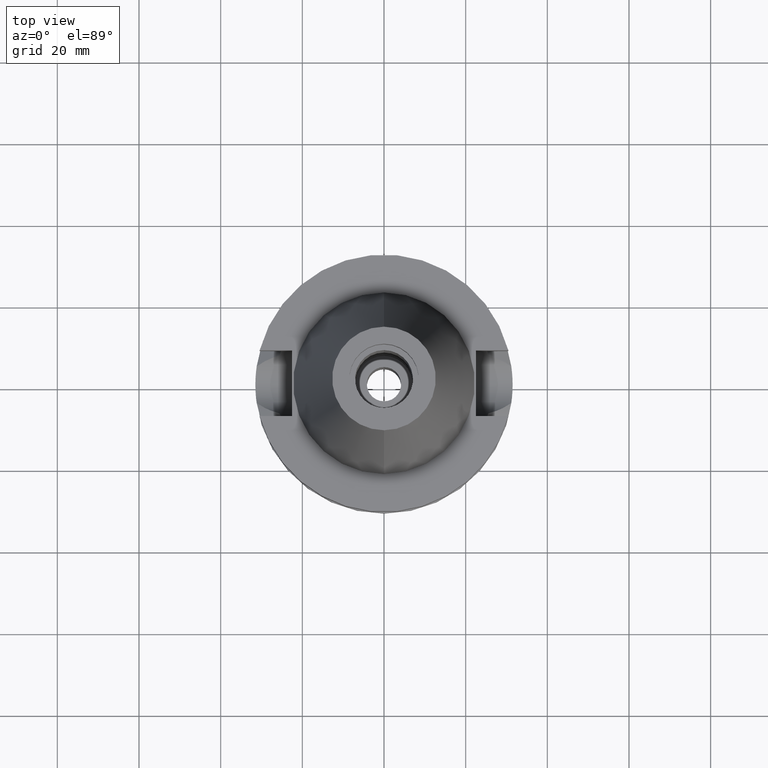
[diagram: clean part render]
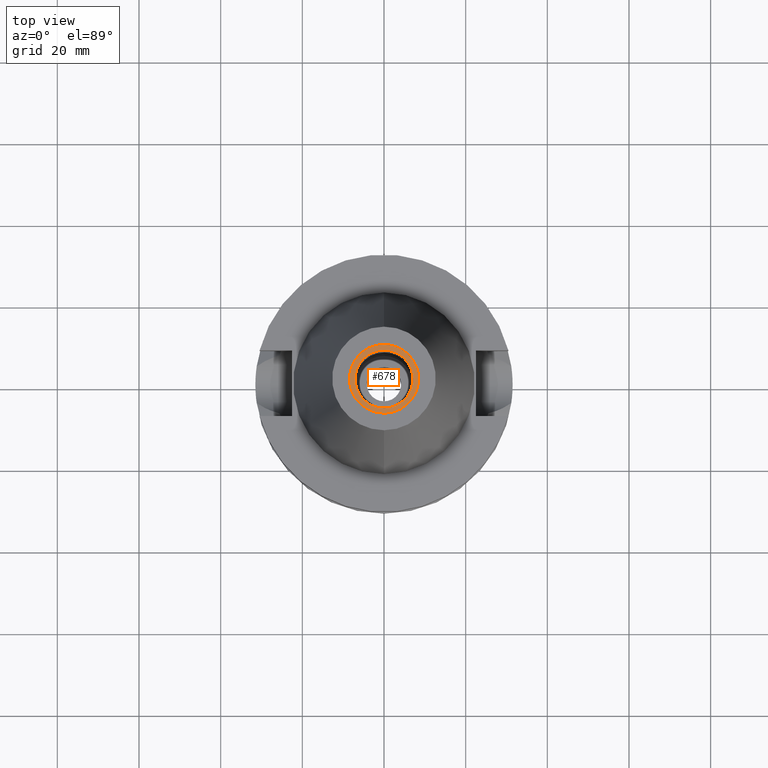
[diagram: same view with one face highlighted and labeled with its STEP entity id]
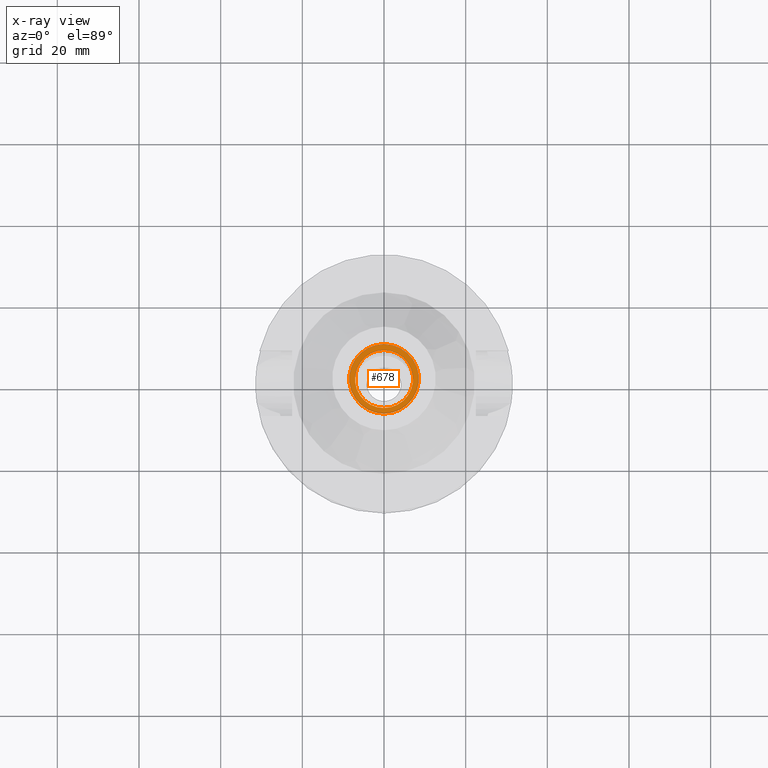
[diagram: x-ray of the same camera — body ghosted, the highlighted face saturated]
A machine part, top view. The second image highlights one B-rep face of the part: STEP entity #678.
The next image is the same camera in x-ray: the body ghosted, the highlighted face saturated — about 0% of this face is hidden behind the body in this view.
In plain terms, the highlighted planar face has unit normal (0, 0, -1).
Its self-contained STEP definition (entity closure, byte-faithful):
#127 = CIRCLE ( 'NONE', #1918, 7.100000000000000533 ) ;
#163 = VERTEX_POINT ( 'NONE', #1311 ) ;
#209 = EDGE_CURVE ( 'NONE', #2036, #163, #2166, .T. ) ;
#309 = CARTESIAN_POINT ( 'NONE',  ( 0.0000000000000000000, 2.116618295306000150E-14, 56.39999999999999858 ) ) ;
#332 = AXIS2_PLACEMENT_3D ( 'NONE', #2973, #1118, #793 ) ;
#380 = EDGE_CURVE ( 'NONE', #163, #2036, #2327, .T. ) ;
#530 = CARTESIAN_POINT ( 'NONE',  ( 0.0000000000000000000, 8.500000000000000000, 56.39999999999999858 ) ) ;
#552 = AXIS2_PLACEMENT_3D ( 'NONE', #1150, #1378, #1901 ) ;
#602 = DIRECTION ( 'NONE',  ( 0.0000000000000000000, 0.0000000000000000000, -1.000000000000000000 ) ) ;
#678 = ADVANCED_FACE ( 'NONE', ( #1138, #1665 ), #1871, .F. ) ;
#708 = CARTESIAN_POINT ( 'NONE',  ( 0.0000000000000000000, 7.100000000000000533, 56.39999999999999858 ) ) ;
#793 = DIRECTION ( 'NONE',  ( 0.0000000000000000000, -1.000000000000000000, 0.0000000000000000000 ) ) ;
#797 = AXIS2_PLACEMENT_3D ( 'NONE', #309, #602, #1290 ) ;
#1118 = DIRECTION ( 'NONE',  ( 0.0000000000000000000, 0.0000000000000000000, -1.000000000000000000 ) ) ;
#1134 = DIRECTION ( 'NONE',  ( 0.0000000000000000000, -1.000000000000000000, 0.0000000000000000000 ) ) ;
#1138 = FACE_OUTER_BOUND ( 'NONE', #2502, .T. ) ;
#1149 = DIRECTION ( 'NONE',  ( 0.0000000000000000000, 0.0000000000000000000, 1.000000000000000000 ) ) ;
#1150 = CARTESIAN_POINT ( 'NONE',  ( 0.0000000000000000000, 2.116618295306000150E-14, 56.39999999999999858 ) ) ;
#1152 = EDGE_CURVE ( 'NONE', #2280, #1839, #127, .T. ) ;
#1171 = CIRCLE ( 'NONE', #552, 7.100000000000000533 ) ;
#1290 = DIRECTION ( 'NONE',  ( 0.0000000000000000000, 1.000000000000000000, 0.0000000000000000000 ) ) ;
#1311 = CARTESIAN_POINT ( 'NONE',  ( 0.0000000000000000000, -8.500000000000000000, 56.39999999999999858 ) ) ;
#1378 = DIRECTION ( 'NONE',  ( 0.0000000000000000000, 0.0000000000000000000, 1.000000000000000000 ) ) ;
#1573 = AXIS2_PLACEMENT_3D ( 'NONE', #2099, #2854, #2369 ) ;
#1628 = CARTESIAN_POINT ( 'NONE',  ( 0.0000000000000000000, -7.100000000000000533, 56.39999999999999858 ) ) ;
#1665 = FACE_BOUND ( 'NONE', #2363, .T. ) ;
#1839 = VERTEX_POINT ( 'NONE', #708 ) ;
#1871 = PLANE ( 'NONE',  #1573 ) ;
#1901 = DIRECTION ( 'NONE',  ( 0.0000000000000000000, 1.000000000000000000, 0.0000000000000000000 ) ) ;
#1918 = AXIS2_PLACEMENT_3D ( 'NONE', #2129, #1149, #1134 ) ;
#1948 = ORIENTED_EDGE ( 'NONE', *, *, #209, .F. ) ;
#2036 = VERTEX_POINT ( 'NONE', #530 ) ;
#2099 = CARTESIAN_POINT ( 'NONE',  ( 0.0000000000000000000, 1.915347593865999799E-14, 56.39999999999999858 ) ) ;
#2129 = CARTESIAN_POINT ( 'NONE',  ( 0.0000000000000000000, 2.116618295306000150E-14, 56.39999999999999858 ) ) ;
#2166 = CIRCLE ( 'NONE', #797, 8.500000000000000000 ) ;
#2280 = VERTEX_POINT ( 'NONE', #1628 ) ;
#2327 = CIRCLE ( 'NONE', #332, 8.500000000000000000 ) ;
#2363 = EDGE_LOOP ( 'NONE', ( #2861, #2547 ) ) ;
#2369 = DIRECTION ( 'NONE',  ( 0.0000000000000000000, -1.000000000000000000, 0.0000000000000000000 ) ) ;
#2502 = EDGE_LOOP ( 'NONE', ( #1948, #2869 ) ) ;
#2547 = ORIENTED_EDGE ( 'NONE', *, *, #1152, .F. ) ;
#2821 = EDGE_CURVE ( 'NONE', #1839, #2280, #1171, .T. ) ;
#2854 = DIRECTION ( 'NONE',  ( 0.0000000000000000000, 0.0000000000000000000, -1.000000000000000000 ) ) ;
#2861 = ORIENTED_EDGE ( 'NONE', *, *, #2821, .F. ) ;
#2869 = ORIENTED_EDGE ( 'NONE', *, *, #380, .F. ) ;
#2973 = CARTESIAN_POINT ( 'NONE',  ( 0.0000000000000000000, 2.116618295306000150E-14, 56.39999999999999858 ) ) ;